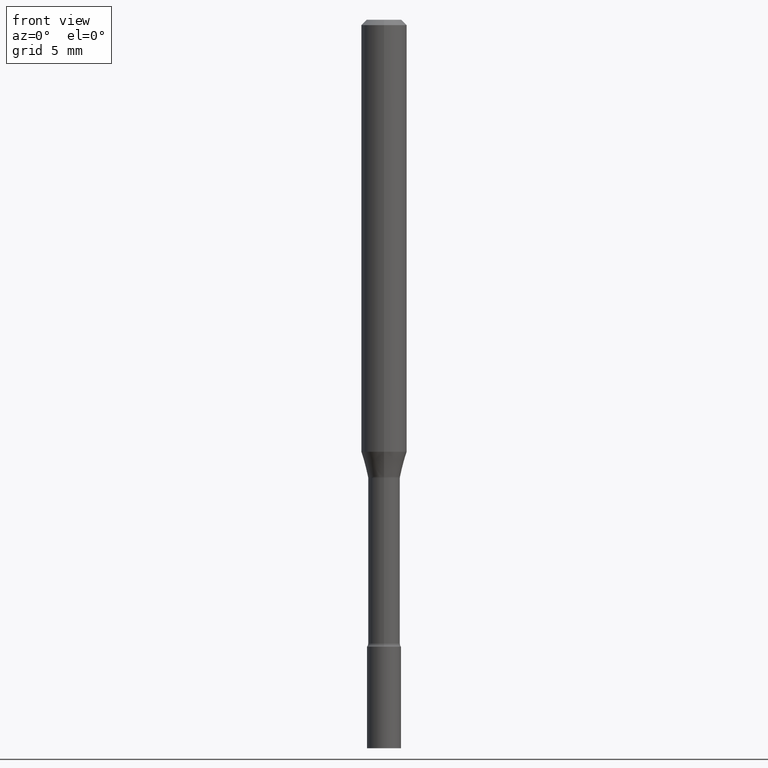
[diagram: clean part render]
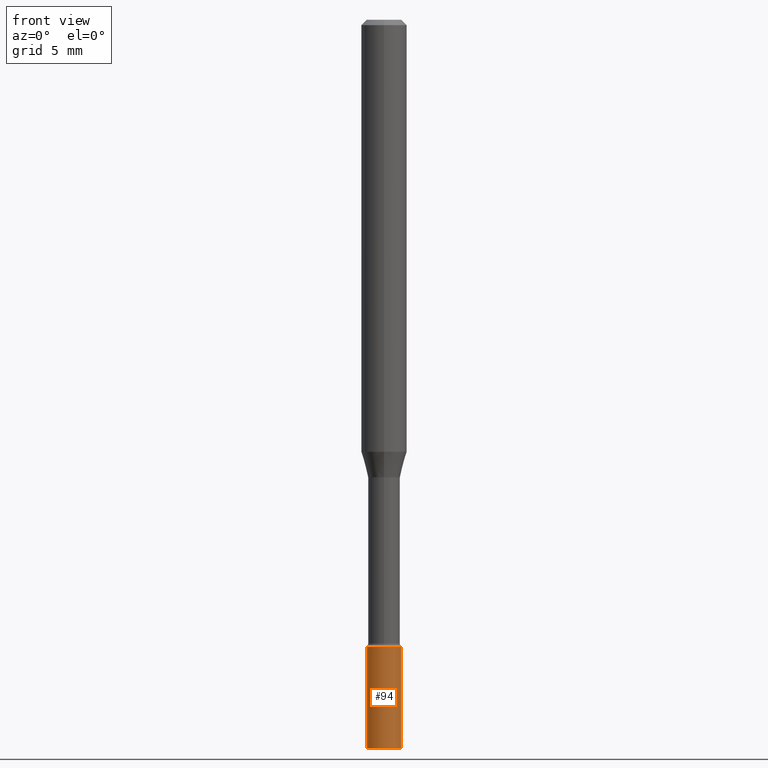
[diagram: same view with one face highlighted and labeled with its STEP entity id]
A machine part, front view. The second image highlights one B-rep face of the part: STEP entity #94.
In plain terms, the highlighted cylindrical surface (edge-blend (fillet) strip) has radius 1.1811 mm, axis along (-0, 0, 1).
Its self-contained STEP definition (entity closure, byte-faithful):
#19 = ORIENTED_EDGE ( 'NONE', *, *, #163, .T. ) ;
#22 = LINE ( 'NONE', #183, #116 ) ;
#23 = EDGE_CURVE ( 'NONE', #161, #67, #508, .T. ) ;
#28 = AXIS2_PLACEMENT_3D ( 'NONE', #297, #225, #160 ) ;
#57 = DIRECTION ( 'NONE',  ( 1.000000000000000000, -6.982962677686260400E-15, 0.000000000000000000 ) ) ;
#60 = EDGE_LOOP ( 'NONE', ( #255, #341, #19, #98 ) ) ;
#67 = VERTEX_POINT ( 'NONE', #194 ) ;
#70 = CARTESIAN_POINT ( 'NONE',  ( 4.208651815444620572E-29, -6.008839384149054309E-15, -1.721000000000000085 ) ) ;
#94 = ADVANCED_FACE ( 'NONE', ( #149 ), #304, .T. ) ;
#98 = ORIENTED_EDGE ( 'NONE', *, *, #235, .F. ) ;
#116 = VECTOR ( 'NONE', #147, 39.37007874015748143 ) ;
#124 = CARTESIAN_POINT ( 'NONE',  ( 4.890937612370273194E-29, -6.982962677686291165E-15, -2.000000000000000000 ) ) ;
#137 = AXIS2_PLACEMENT_3D ( 'NONE', #124, #487, #233 ) ;
#139 = VECTOR ( 'NONE', #469, 39.37007874015748143 ) ;
#145 = CARTESIAN_POINT ( 'NONE',  ( -0.04649999999999999967, -6.165498658789225463E-15, -2.000000000000000000 ) ) ;
#147 = DIRECTION ( 'NONE',  ( -2.445468806185136877E-29, 3.491481338843145188E-15, 1.000000000000000000 ) ) ;
#149 = FACE_OUTER_BOUND ( 'NONE', #60, .T. ) ;
#160 = DIRECTION ( 'NONE',  ( 1.000000000000000000, -6.982962677686267499E-15, 4.876176775795936353E-29 ) ) ;
#161 = VERTEX_POINT ( 'NONE', #145 ) ;
#163 = EDGE_CURVE ( 'NONE', #67, #506, #22, .T. ) ;
#183 = CARTESIAN_POINT ( 'NONE',  ( 0.04649999999999999967, -3.247077645124114474E-16, 2.267422200745110326E-30 ) ) ;
#194 = CARTESIAN_POINT ( 'NONE',  ( 0.04649999999999999967, -7.307670442198702662E-15, -2.000000000000000000 ) ) ;
#225 = DIRECTION ( 'NONE',  ( -2.445468806185136597E-29, 3.491481338843145583E-15, 1.000000000000000000 ) ) ;
#233 = DIRECTION ( 'NONE',  ( 1.000000000000000000, -6.982962677686260400E-15, 0.000000000000000000 ) ) ;
#235 = EDGE_CURVE ( 'NONE', #504, #506, #428, .T. ) ;
#254 = AXIS2_PLACEMENT_3D ( 'NONE', #70, #482, #57 ) ;
#255 = ORIENTED_EDGE ( 'NONE', *, *, #369, .F. ) ;
#297 = CARTESIAN_POINT ( 'NONE',  ( 0.000000000000000000, 0.000000000000000000, 0.000000000000000000 ) ) ;
#304 = CYLINDRICAL_SURFACE ( 'NONE', #28, 0.04649999999999999967 ) ;
#341 = ORIENTED_EDGE ( 'NONE', *, *, #23, .T. ) ;
#369 = EDGE_CURVE ( 'NONE', #161, #504, #473, .T. ) ;
#428 = CIRCLE ( 'NONE', #254, 0.04649999999999999967 ) ;
#433 = CARTESIAN_POINT ( 'NONE',  ( -0.04649999999999999967, 3.304023721284465841E-16, -2.287304816968531530E-30 ) ) ;
#439 = CARTESIAN_POINT ( 'NONE',  ( -0.04649999999999999967, -6.165498658789225463E-15, -1.721000000000000085 ) ) ;
#441 = CARTESIAN_POINT ( 'NONE',  ( 0.04649999999999999967, -6.333547148661465016E-15, -1.721000000000000085 ) ) ;
#469 = DIRECTION ( 'NONE',  ( -2.445468806185136877E-29, 3.491481338843145188E-15, 1.000000000000000000 ) ) ;
#473 = LINE ( 'NONE', #433, #139 ) ;
#482 = DIRECTION ( 'NONE',  ( -2.445468806185136597E-29, 3.491481338843145583E-15, 1.000000000000000000 ) ) ;
#487 = DIRECTION ( 'NONE',  ( -2.445468806185136597E-29, 3.491481338843145583E-15, 1.000000000000000000 ) ) ;
#504 = VERTEX_POINT ( 'NONE', #439 ) ;
#506 = VERTEX_POINT ( 'NONE', #441 ) ;
#508 = CIRCLE ( 'NONE', #137, 0.04649999999999999967 ) ;